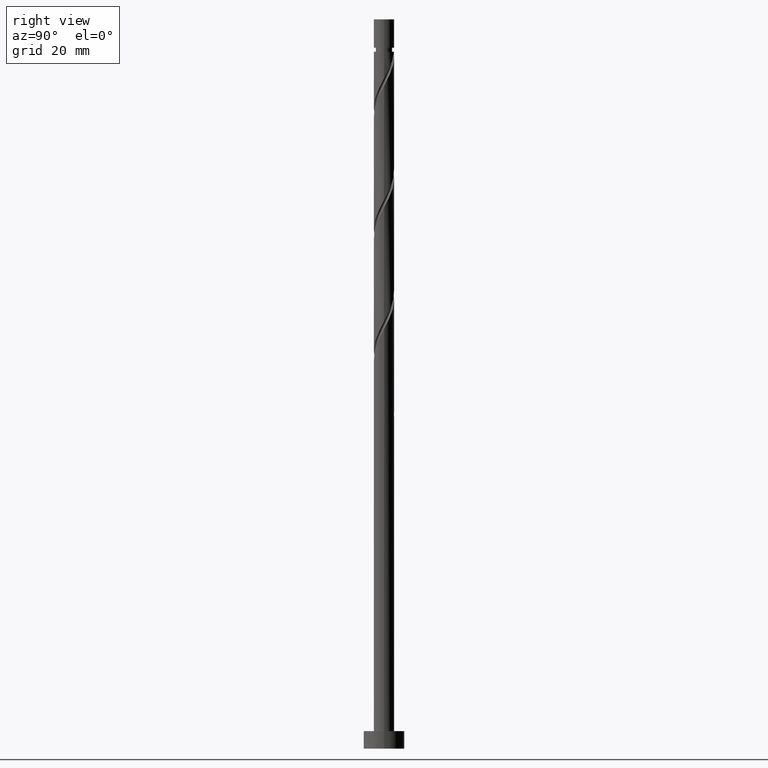
[diagram: clean part render]
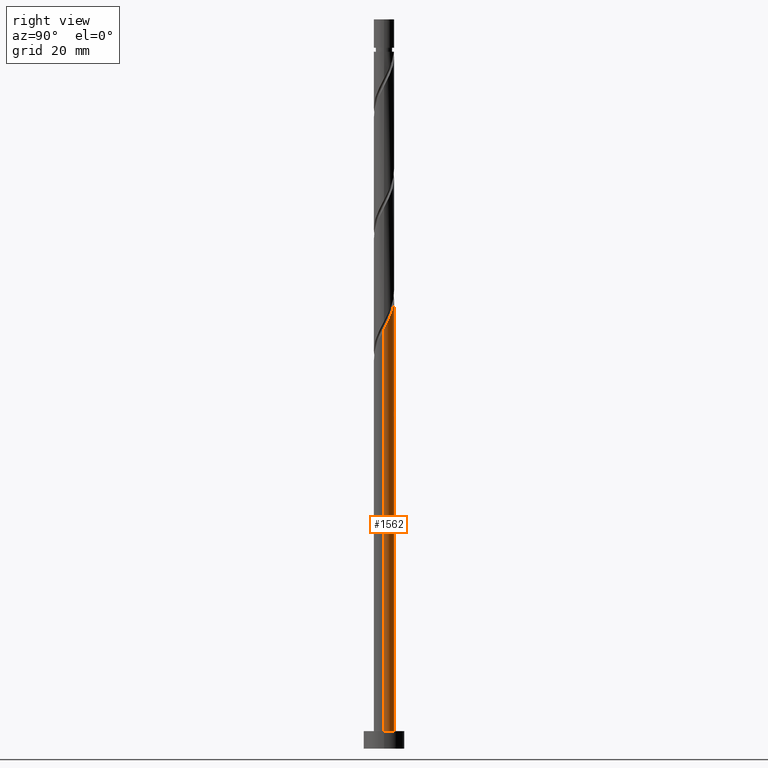
[diagram: same view with one face highlighted and labeled with its STEP entity id]
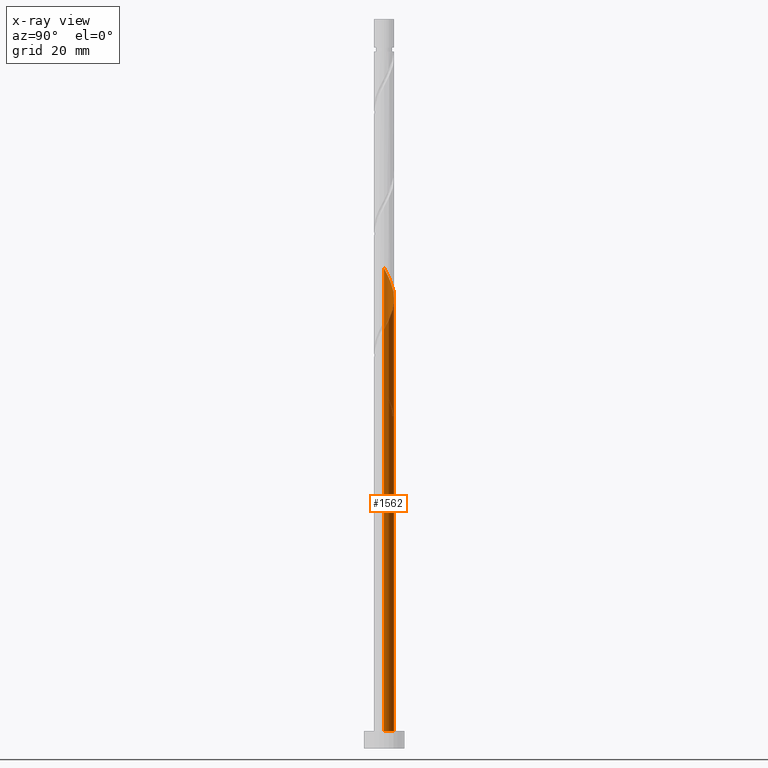
[diagram: x-ray of the same camera — body ghosted, the highlighted face saturated]
A machine part, right view. The second image highlights one B-rep face of the part: STEP entity #1562.
The next image is the same camera in x-ray: the body ghosted, the highlighted face saturated — about 0% of this face is hidden behind the body in this view.
In plain terms, the highlighted cylindrical surface (edge-blend (fillet) strip) has radius 1.75 mm, axis along (-0, -0, -1).
Its self-contained STEP definition (entity closure, byte-faithful):
#13 = CARTESIAN_POINT ( 'NONE',  ( -1.738675734985623000, 0.1987628953608126248, 61.11439447984146511 ) ) ;
#23 = CARTESIAN_POINT ( 'NONE',  ( 0.3482456029873174930, 1.715000000000000080, 56.94772781317480792 ) ) ;
#61 = ORIENTED_EDGE ( 'NONE', *, *, #447, .F. ) ;
#74 = VECTOR ( 'NONE', #289, 1000.000000000000000 ) ;
#99 = ORIENTED_EDGE ( 'NONE', *, *, #606, .T. ) ;
#102 = CARTESIAN_POINT ( 'NONE',  ( 1.715000000000003411, 0.3482456029873171044, 72.57272781317479371 ) ) ;
#110 = VERTEX_POINT ( 'NONE', #23 ) ;
#111 = CARTESIAN_POINT ( 'NONE',  ( -0.4741420785523612347, 1.707194785046613816, 58.51022781317480792 ) ) ;
#143 = CARTESIAN_POINT ( 'NONE',  ( -1.592157774964681805, 0.7263150966485025783, 80.90606114650812231 ) ) ;
#159 = CARTESIAN_POINT ( 'NONE',  ( -1.289788318714684356, 1.182770515741392581, 79.86439447984147932 ) ) ;
#164 = CARTESIAN_POINT ( 'NONE',  ( -1.750000000000000000, 0.000000000000000000, 125.0000000000000000 ) ) ;
#168 = CARTESIAN_POINT ( 'NONE',  ( -1.750000000000003553, 0.09970404053125707378, 82.13508094916393532 ) ) ;
#173 = EDGE_LOOP ( 'NONE', ( #219, #99, #557, #854, #61, #421, #1398, #427 ) ) ;
#182 = VERTEX_POINT ( 'NONE', #1003 ) ;
#189 = FACE_OUTER_BOUND ( 'NONE', #173, .T. ) ;
#219 = ORIENTED_EDGE ( 'NONE', *, *, #1262, .F. ) ;
#238 = CARTESIAN_POINT ( 'NONE',  ( -0.9784881147446411465, 1.477120764882745352, 59.55189447984147932 ) ) ;
#257 = CARTESIAN_POINT ( 'NONE',  ( -0.3482456029873169934, 1.715000000000003411, 56.94772781317480792 ) ) ;
#272 = CARTESIAN_POINT ( 'NONE',  ( 0.3482456029873174930, 1.715000000000000080, 56.94772781317480792 ) ) ;
#273 = EDGE_CURVE ( 'NONE', #1542, #110, #1557, .T. ) ;
#278 = CARTESIAN_POINT ( 'NONE',  ( 1.750000000000000000, 2.143131898507867804E-16, 3.000000000000000000 ) ) ;
#287 =( BOUNDED_CURVE ( )  B_SPLINE_CURVE ( 2, ( #257, #503, #1204, #497, #1102, #725, #613, #955, #13, #948, #366 ),
 .UNSPECIFIED., .F., .T. ) 
 B_SPLINE_CURVE_WITH_KNOTS ( ( 3, 2, 2, 2, 2, 3 ),
 ( 0.000000000000000000, 0.01249999999999995559, 0.02500000000000002220, 0.03749999999999997780, 0.05000000000000004441, 0.05453220231385508265 ),
 .UNSPECIFIED. ) 
 CURVE ( )  GEOMETRIC_REPRESENTATION_ITEM ( )  RATIONAL_B_SPLINE_CURVE ( ( 0.9090909090909216062, 0.8978984914501375592, 0.9090909090909216062, 0.8978984914501375592, 0.9090909090909216062, 0.8978984914501375592, 0.9090909090909216062, 0.8978984914501375592, 0.9090909090909216062, 0.9050328050005861380, 0.9039174447099438403 ) ) 
 REPRESENTATION_ITEM ( '' )  );
#289 = DIRECTION ( 'NONE',  ( -0.000000000000000000, -0.000000000000000000, -1.000000000000000000 ) ) ;
#306 = DIRECTION ( 'NONE',  ( 0.000000000000000000, -2.973811673103100130E-14, -1.000000000000000000 ) ) ;
#324 = CARTESIAN_POINT ( 'NONE',  ( -1.750000000000000000, 0.000000000000000000, 125.0000000000000000 ) ) ;
#366 = CARTESIAN_POINT ( 'NONE',  ( -1.750000000000003109, -1.611758549194608760E-15, 61.49125870503787183 ) ) ;
#372 = CARTESIAN_POINT ( 'NONE',  ( -1.750000000000000000, 2.061551632690792561E-15, 62.82086358797840830 ) ) ;
#375 =( BOUNDED_CURVE ( )  B_SPLINE_CURVE ( 2, ( #616, #499, #102, #1319, #972, #1461, #1341, #1062, #1548, #469, #515, #1471, #1000, #392, #650, #1502, #159, #409, #143, #635, #862, #168, #989 ),
 .UNSPECIFIED., .F., .T. ) 
 B_SPLINE_CURVE_WITH_KNOTS ( ( 3, 2, 2, 2, 2, 2, 2, 2, 2, 2, 2, 3 ),
 ( 0.1795322023138555267, 0.1875000000000000000, 0.1999999999999999556, 0.2125000000000000222, 0.2249999999999999778, 0.2375000000000000444, 0.2500000000000000000, 0.2624999999999999556, 0.2750000000000000222, 0.2874999999999999778, 0.3000000000000000444, 0.3045322023138552492 ),
 .UNSPECIFIED. ) 
 CURVE ( )  GEOMETRIC_REPRESENTATION_ITEM ( )  RATIONAL_B_SPLINE_CURVE ( ( 0.9039174447099436183, 0.9019565955404733604, 0.9090909090909216062, 0.8978984914501375592, 0.9090909090909216062, 0.8978984914501375592, 0.9090909090909216062, 0.8978984914501375592, 0.9090909090909216062, 0.8978984914501375592, 0.9090909090909216062, 0.8978984914501375592, 0.9090909090909216062, 0.8978984914501375592, 0.9090909090909216062, 0.8978984914501375592, 0.9090909090909216062, 0.8978984914501375592, 0.9090909090909216062, 0.8978984914501375592, 0.9090909090909216062, 0.9050328050005858049, 0.9039174447099437293 ) ) 
 REPRESENTATION_ITEM ( '' )  );
#387 = EDGE_CURVE ( 'NONE', #845, #110, #977, .T. ) ;
#392 = CARTESIAN_POINT ( 'NONE',  ( -0.6198749181438977240, 1.659843315075376413, 78.30189447984147932 ) ) ;
#409 = CARTESIAN_POINT ( 'NONE',  ( -1.477120764882747572, 0.9784881147446428118, 80.38522781317482213 ) ) ;
#421 = ORIENTED_EDGE ( 'NONE', *, *, #273, .T. ) ;
#422 = DIRECTION ( 'NONE',  ( 1.000000000000000000, 0.000000000000000000, 0.000000000000000000 ) ) ;
#427 = ORIENTED_EDGE ( 'NONE', *, *, #1135, .F. ) ;
#447 = EDGE_CURVE ( 'NONE', #1542, #182, #287, .T. ) ;
#469 = CARTESIAN_POINT ( 'NONE',  ( 0.4741420785523627335, 1.707194785046616925, 76.21856114650815073 ) ) ;
#497 = CARTESIAN_POINT ( 'NONE',  ( -1.102455872546620474, 1.387052916738142905, 58.51022781317482924 ) ) ;
#499 = CARTESIAN_POINT ( 'NONE',  ( 1.750000000000001998, 0.1758816176703688616, 72.24222994711236367 ) ) ;
#503 = CARTESIAN_POINT ( 'NONE',  ( -0.6198749181438977240, 1.659843315075376413, 57.46856114650815073 ) ) ;
#515 = CARTESIAN_POINT ( 'NONE',  ( 0.1987628953608130966, 1.738675734985623000, 76.73939447984145090 ) ) ;
#518 = DIRECTION ( 'NONE',  ( -0.000000000000000000, -0.000000000000000000, -1.000000000000000000 ) ) ;
#521 = CARTESIAN_POINT ( 'NONE',  ( 0.000000000000000000, 0.000000000000000000, 3.000000000000000000 ) ) ;
#547 = CARTESIAN_POINT ( 'NONE',  ( -1.750000000000003109, -1.611758549194608562E-15, 82.32459203837122175 ) ) ;
#557 = ORIENTED_EDGE ( 'NONE', *, *, #1284, .T. ) ;
#558 = EDGE_CURVE ( 'NONE', #182, #1081, #1252, .T. ) ;
#576 = DIRECTION ( 'NONE',  ( -0.000000000000000000, -0.000000000000000000, -1.000000000000000000 ) ) ;
#590 = CARTESIAN_POINT ( 'NONE',  ( -1.750000000000000000, 0.000000000000000000, 3.000000000000000000 ) ) ;
#606 = EDGE_CURVE ( 'NONE', #837, #960, #640, .T. ) ;
#613 = CARTESIAN_POINT ( 'NONE',  ( -1.592157774964681805, 0.7263150966485025783, 60.07272781317481503 ) ) ;
#616 = CARTESIAN_POINT ( 'NONE',  ( 1.750000000000003109, 1.349379250488509398E-15, 71.90792537170455034 ) ) ;
#619 = CARTESIAN_POINT ( 'NONE',  ( -1.387052916738139796, 1.102455872546618476, 60.59356114650814362 ) ) ;
#635 = CARTESIAN_POINT ( 'NONE',  ( -1.707194785046616925, 0.4741420785523623449, 81.42689447984147932 ) ) ;
#640 = LINE ( 'NONE', #647, #1439 ) ;
#646 = LINE ( 'NONE', #324, #1568 ) ;
#647 = CARTESIAN_POINT ( 'NONE',  ( 1.750000000000000000, 2.143131898507867804E-16, 125.0000000000000000 ) ) ;
#650 = CARTESIAN_POINT ( 'NONE',  ( -0.8611653953452588217, 1.523448115906759437, 78.82272781317482213 ) ) ;
#672 = DIRECTION ( 'NONE',  ( -1.000000000000000000, 0.000000000000000000, 0.000000000000000000 ) ) ;
#725 = CARTESIAN_POINT ( 'NONE',  ( -1.477120764882747572, 0.9784881147446428118, 59.55189447984148643 ) ) ;
#732 = CARTESIAN_POINT ( 'NONE',  ( 0.07661628783073730353, 1.770156684924627077, 57.46856114650815073 ) ) ;
#768 = DIRECTION ( 'NONE',  ( 0.000000000000000000, 0.000000000000000000, 1.000000000000000000 ) ) ;
#803 = CARTESIAN_POINT ( 'NONE',  ( 0.000000000000000000, 0.000000000000000000, 125.0000000000000000 ) ) ;
#837 = VERTEX_POINT ( 'NONE', #1174 ) ;
#845 = VERTEX_POINT ( 'NONE', #1026 ) ;
#854 = ORIENTED_EDGE ( 'NONE', *, *, #558, .F. ) ;
#862 = CARTESIAN_POINT ( 'NONE',  ( -1.738675734985623000, 0.1987628953608126248, 81.94772781317480792 ) ) ;
#889 = CARTESIAN_POINT ( 'NONE',  ( 0.000000000000000000, 0.000000000000000000, 56.94772781317486476 ) ) ;
#948 = CARTESIAN_POINT ( 'NONE',  ( -1.750000000000002887, 0.09970404053126070976, 61.30174761583058540 ) ) ;
#955 = CARTESIAN_POINT ( 'NONE',  ( -1.707194785046616925, 0.4741420785523623449, 60.59356114650815073 ) ) ;
#960 = VERTEX_POINT ( 'NONE', #278 ) ;
#972 = CARTESIAN_POINT ( 'NONE',  ( 1.523448115906759437, 0.8611653953452583776, 73.61439447984145090 ) ) ;
#977 =( BOUNDED_CURVE ( )  B_SPLINE_CURVE ( 2, ( #372, #1222, #1553, #1085, #1331, #619, #1459, #238, #1325, #111, #1453, #732, #272 ),
 .UNSPECIFIED., .F., .T. ) 
 B_SPLINE_CURVE_WITH_KNOTS ( ( 3, 2, 2, 2, 2, 2, 3 ),
 ( 0.9295322023138553602, 0.9375000000000000000, 0.9499999999999999556, 0.9625000000000000222, 0.9749999999999999778, 0.9875000000000000444, 1.000000000000000000 ),
 .UNSPECIFIED. ) 
 CURVE ( )  GEOMETRIC_REPRESENTATION_ITEM ( )  RATIONAL_B_SPLINE_CURVE ( ( 0.9039174447099371790, 0.9019565955404666990, 0.9090909090909150558, 0.8978984914501311199, 0.9090909090909150558, 0.8978984914501311199, 0.9090909090909150558, 0.8978984914501311199, 0.9090909090909150558, 0.8978984914501311199, 0.9090909090909150558, 0.8978984914501311199, 0.9090909090909150558 ) ) 
 REPRESENTATION_ITEM ( '' )  );
#989 = CARTESIAN_POINT ( 'NONE',  ( -1.750000000000003109, -1.611758549194608562E-15, 82.32459203837122175 ) ) ;
#997 = AXIS2_PLACEMENT_3D ( 'NONE', #889, #306, #1263 ) ;
#1000 = CARTESIAN_POINT ( 'NONE',  ( -0.3482456029873169379, 1.715000000000003411, 77.78106114650813652 ) ) ;
#1003 = CARTESIAN_POINT ( 'NONE',  ( -1.750000000000003109, -1.611758549194608562E-15, 61.49125870503787894 ) ) ;
#1013 = DIRECTION ( 'NONE',  ( -0.000000000000000000, -0.000000000000000000, -1.000000000000000000 ) ) ;
#1026 = CARTESIAN_POINT ( 'NONE',  ( -1.749999999999999778, 2.061551632690792561E-15, 62.82086358797840830 ) ) ;
#1055 = AXIS2_PLACEMENT_3D ( 'NONE', #803, #576, #672 ) ;
#1062 = CARTESIAN_POINT ( 'NONE',  ( 0.9784881147446430338, 1.477120764882747128, 75.17689447984146511 ) ) ;
#1081 = VERTEX_POINT ( 'NONE', #590 ) ;
#1085 = CARTESIAN_POINT ( 'NONE',  ( -1.659843315075372860, 0.6198749181438970579, 61.63522781317482213 ) ) ;
#1102 = CARTESIAN_POINT ( 'NONE',  ( -1.289788318714684356, 1.182770515741392581, 59.03106114650812231 ) ) ;
#1135 = EDGE_CURVE ( 'NONE', #1524, #845, #646, .T. ) ;
#1174 = CARTESIAN_POINT ( 'NONE',  ( 1.750000000000003109, 1.349379250488509398E-15, 71.90792537170455034 ) ) ;
#1204 = CARTESIAN_POINT ( 'NONE',  ( -0.8611653953452588217, 1.523448115906759437, 57.98939447984148643 ) ) ;
#1210 = AXIS2_PLACEMENT_3D ( 'NONE', #521, #768, #422 ) ;
#1222 = CARTESIAN_POINT ( 'NONE',  ( -1.749999999999999556, 0.1758816176703656420, 62.48655901257057366 ) ) ;
#1238 = CIRCLE ( 'NONE', #1210, 1.750000000000000000 ) ;
#1252 = LINE ( 'NONE', #164, #74 ) ;
#1262 = EDGE_CURVE ( 'NONE', #837, #1524, #375, .T. ) ;
#1263 = DIRECTION ( 'NONE',  ( 0.000000000000000000, 1.000000000000000000, -3.172065784643304491E-14 ) ) ;
#1284 = EDGE_CURVE ( 'NONE', #960, #1081, #1238, .T. ) ;
#1297 = CARTESIAN_POINT ( 'NONE',  ( -0.3482456029873169934, 1.715000000000003411, 56.94772781317480792 ) ) ;
#1319 = CARTESIAN_POINT ( 'NONE',  ( 1.659843315075376635, 0.6198749181438973910, 73.09356114650815073 ) ) ;
#1325 = CARTESIAN_POINT ( 'NONE',  ( -0.7263150966485011351, 1.592157774964679806, 59.03106114650814362 ) ) ;
#1331 = CARTESIAN_POINT ( 'NONE',  ( -1.523448115906756328, 0.8611653953452578225, 61.11439447984146511 ) ) ;
#1341 = CARTESIAN_POINT ( 'NONE',  ( 1.182770515741392581, 1.289788318714684356, 74.65606114650813652 ) ) ;
#1398 = ORIENTED_EDGE ( 'NONE', *, *, #387, .F. ) ;
#1401 = CYLINDRICAL_SURFACE ( 'NONE', #1055, 1.750000000000000000 ) ;
#1439 = VECTOR ( 'NONE', #518, 1000.000000000000000 ) ;
#1453 = CARTESIAN_POINT ( 'NONE',  ( -0.1987628953608119586, 1.738675734985620558, 57.98939447984147222 ) ) ;
#1459 = CARTESIAN_POINT ( 'NONE',  ( -1.182770515741390360, 1.289788318714682136, 60.07272781317480792 ) ) ;
#1461 = CARTESIAN_POINT ( 'NONE',  ( 1.387052916738143127, 1.102455872546620474, 74.13522781317482213 ) ) ;
#1471 = CARTESIAN_POINT ( 'NONE',  ( -0.07661628783073667903, 1.770156684924629964, 77.26022781317482213 ) ) ;
#1502 = CARTESIAN_POINT ( 'NONE',  ( -1.102455872546620474, 1.387052916738142905, 79.34356114650815073 ) ) ;
#1524 = VERTEX_POINT ( 'NONE', #547 ) ;
#1542 = VERTEX_POINT ( 'NONE', #1297 ) ;
#1548 = CARTESIAN_POINT ( 'NONE',  ( 0.7263150966485028004, 1.592157774964681805, 75.69772781317480792 ) ) ;
#1553 = CARTESIAN_POINT ( 'NONE',  ( -1.715000000000000080, 0.3482456029873171599, 62.15606114650815073 ) ) ;
#1557 = CIRCLE ( 'NONE', #997, 1.750000000000000000 ) ;
#1562 = ADVANCED_FACE ( 'NONE', ( #189 ), #1401, .T. ) ;
#1568 = VECTOR ( 'NONE', #1013, 1000.000000000000000 ) ;